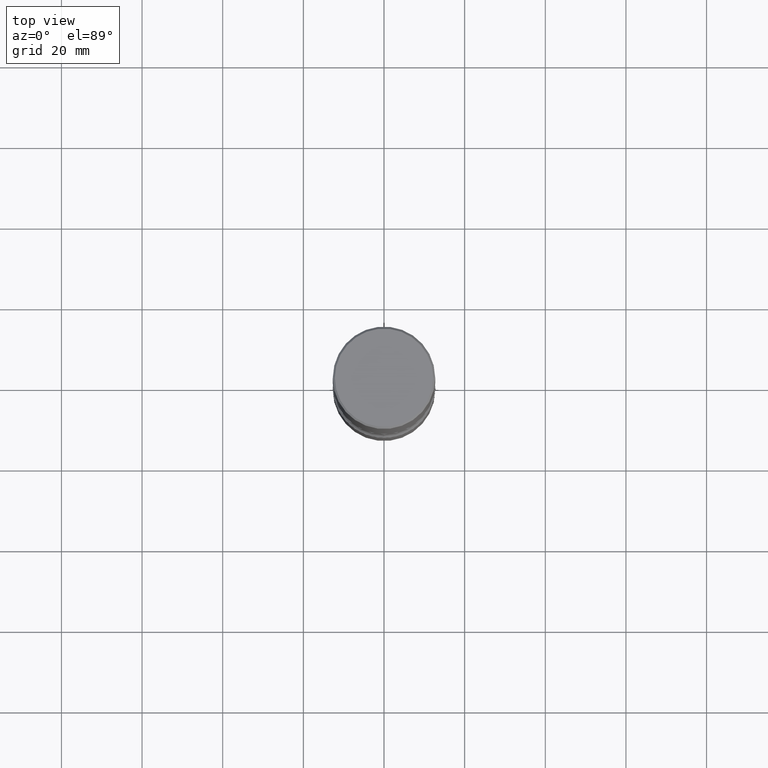
[diagram: clean part render]
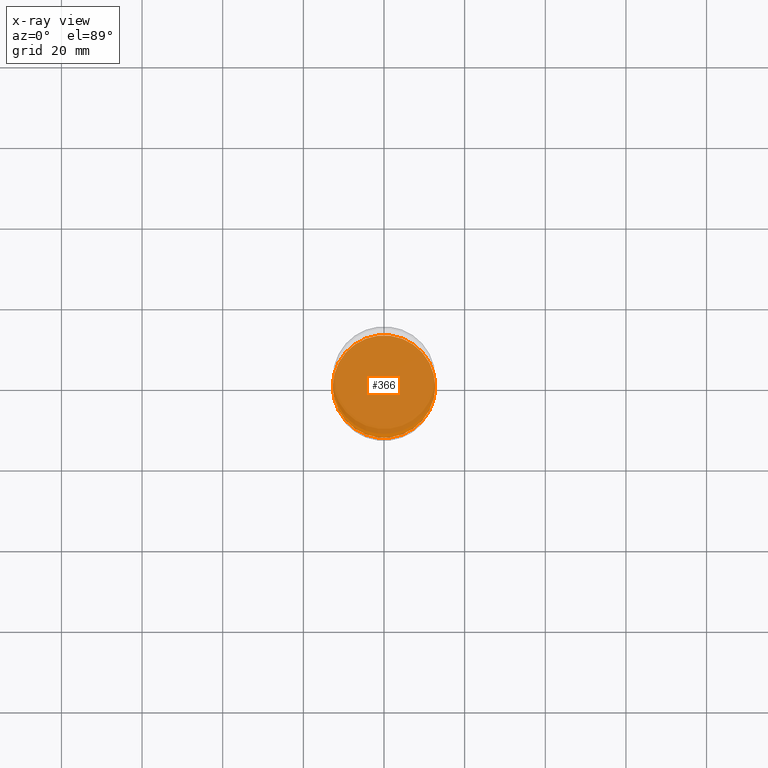
[diagram: x-ray — body ghosted, one internal face saturated and labeled with its STEP entity id]
A machine part, top view, then the same camera in x-ray: the body is ghosted and one INTERNAL B-rep face — a face not visible from any outside direction — is saturated and labeled: STEP entity #366.
In plain terms, the highlighted planar face has unit normal (0, -0, -1).
Its self-contained STEP definition (entity closure, byte-faithful):
#12 = CARTESIAN_POINT ( 'NONE',  ( 0.5000000000000002220, -2.094888803305886009E-14, -4.999999999999999112 ) ) ;
#30 = VERTEX_POINT ( 'NONE', #12 ) ;
#45 = CARTESIAN_POINT ( 'NONE',  ( 1.222734403092568074E-28, -1.745740669421572673E-14, -4.999999999999999112 ) ) ;
#56 = EDGE_LOOP ( 'NONE', ( #546, #456 ) ) ;
#81 = CARTESIAN_POINT ( 'NONE',  ( -0.5000000000000002220, -1.695973918690297853E-14, -4.999999999999999112 ) ) ;
#115 = VERTEX_POINT ( 'NONE', #81 ) ;
#132 = DIRECTION ( 'NONE',  ( -1.000000000000000000, 6.982962677686265922E-15, -4.876176775795935793E-29 ) ) ;
#137 = DIRECTION ( 'NONE',  ( 2.438088387897960049E-29, -3.491481338843145188E-15, -1.000000000000000000 ) ) ;
#145 = CARTESIAN_POINT ( 'NONE',  ( 1.222734403092568074E-28, -1.745740669421572673E-14, -4.999999999999999112 ) ) ;
#151 = DIRECTION ( 'NONE',  ( 1.000000000000000000, -6.982962677686263555E-15, 0.000000000000000000 ) ) ;
#232 = CIRCLE ( 'NONE', #301, 0.5000000000000002220 ) ;
#279 = EDGE_CURVE ( 'NONE', #115, #30, #308, .T. ) ;
#296 = CARTESIAN_POINT ( 'NONE',  ( 1.222734403092568074E-28, -1.745740669421572673E-14, -4.999999999999999112 ) ) ;
#301 = AXIS2_PLACEMENT_3D ( 'NONE', #145, #485, #151 ) ;
#308 = CIRCLE ( 'NONE', #433, 0.5000000000000002220 ) ;
#345 = PLANE ( 'NONE',  #543 ) ;
#366 = ADVANCED_FACE ( 'NONE', ( #431 ), #345, .F. ) ;
#380 = DIRECTION ( 'NONE',  ( -2.445468806185136597E-29, 3.491481338843145583E-15, 1.000000000000000000 ) ) ;
#431 = FACE_OUTER_BOUND ( 'NONE', #56, .T. ) ;
#433 = AXIS2_PLACEMENT_3D ( 'NONE', #296, #380, #469 ) ;
#456 = ORIENTED_EDGE ( 'NONE', *, *, #279, .T. ) ;
#469 = DIRECTION ( 'NONE',  ( 1.000000000000000000, -6.982962677686263555E-15, 0.000000000000000000 ) ) ;
#485 = DIRECTION ( 'NONE',  ( -2.445468806185136597E-29, 3.491481338843145583E-15, 1.000000000000000000 ) ) ;
#539 = EDGE_CURVE ( 'NONE', #30, #115, #232, .T. ) ;
#543 = AXIS2_PLACEMENT_3D ( 'NONE', #45, #137, #132 ) ;
#546 = ORIENTED_EDGE ( 'NONE', *, *, #539, .T. ) ;